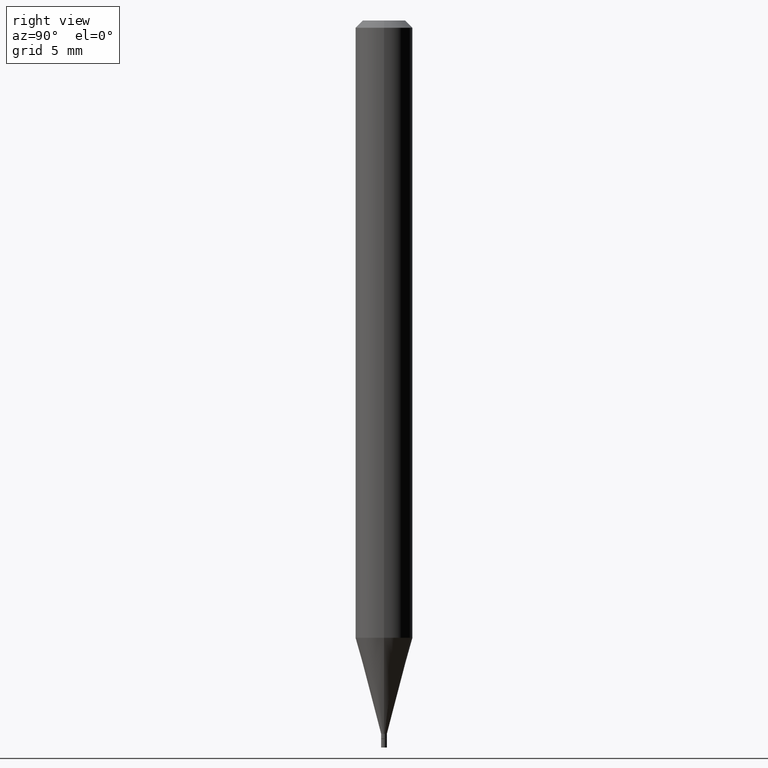
[diagram: clean part render]
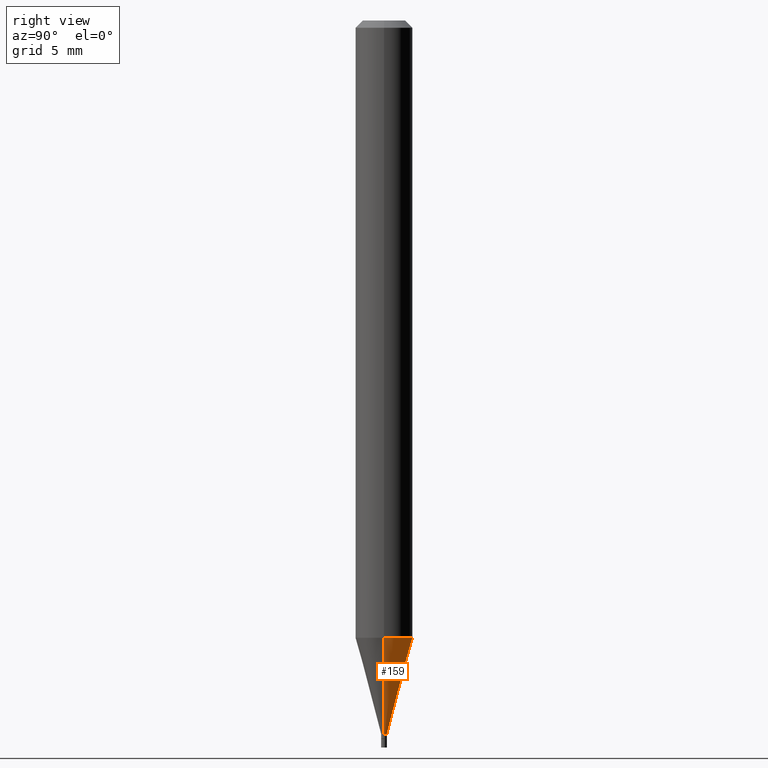
[diagram: same view with one face highlighted and labeled with its STEP entity id]
A machine part, right view. The second image highlights one B-rep face of the part: STEP entity #159.
In plain terms, the highlighted conical surface has half-angle 15 deg.
Its self-contained STEP definition (entity closure, byte-faithful):
#8 = FACE_OUTER_BOUND ( 'NONE', #331, .T. ) ;
#21 = VERTEX_POINT ( 'NONE', #438 ) ;
#23 = ORIENTED_EDGE ( 'NONE', *, *, #305, .T. ) ;
#36 = EDGE_CURVE ( 'NONE', #108, #239, #361, .T. ) ;
#37 = ORIENTED_EDGE ( 'NONE', *, *, #36, .T. ) ;
#44 = DIRECTION ( 'NONE',  ( 1.000000000000000000, -6.982962677686312464E-15, 0.000000000000000000 ) ) ;
#55 = EDGE_CURVE ( 'NONE', #108, #21, #270, .T. ) ;
#67 = CARTESIAN_POINT ( 'NONE',  ( -0.005899999999999920065, -4.562429276026358128E-15, -1.471999999999999975 ) ) ;
#68 = AXIS2_PLACEMENT_3D ( 'NONE', #369, #343, #44 ) ;
#108 = VERTEX_POINT ( 'NONE', #295 ) ;
#111 = DIRECTION ( 'NONE',  ( -2.445468806185136597E-29, 3.491481338843145583E-15, 1.000000000000000000 ) ) ;
#128 = DIRECTION ( 'NONE',  ( 0.2588190451025215721, 1.565188264969619995E-15, 0.9659258262890679791 ) ) ;
#140 = VECTOR ( 'NONE', #128, 39.37007874015748143 ) ;
#150 = DIRECTION ( 'NONE',  ( 1.000000000000000000, -6.982962677686273021E-15, 0.000000000000000000 ) ) ;
#154 = VECTOR ( 'NONE', #357, 39.37007874015748143 ) ;
#157 = CIRCLE ( 'NONE', #297, 0.05904999999999999832 ) ;
#159 = ADVANCED_FACE ( 'NONE', ( #8 ), #283, .T. ) ;
#174 = CARTESIAN_POINT ( 'NONE',  ( -0.05904999999999999138, -4.027320042685452251E-15, -1.273641499577714553 ) ) ;
#175 = VERTEX_POINT ( 'NONE', #174 ) ;
#178 = DIRECTION ( 'NONE',  ( 1.000000000000000000, -6.982962677686312464E-15, 0.000000000000000000 ) ) ;
#220 = EDGE_CURVE ( 'NONE', #21, #175, #157, .T. ) ;
#226 = LINE ( 'NONE', #321, #154 ) ;
#227 = AXIS2_PLACEMENT_3D ( 'NONE', #461, #411, #178 ) ;
#233 = ORIENTED_EDGE ( 'NONE', *, *, #55, .F. ) ;
#239 = VERTEX_POINT ( 'NONE', #67 ) ;
#270 = LINE ( 'NONE', #449, #140 ) ;
#283 = CONICAL_SURFACE ( 'NONE', #227, 0.005899999999999920065, 0.2617993877991502960 ) ;
#295 = CARTESIAN_POINT ( 'NONE',  ( 0.005899999999999920065, -5.180660010575459883E-15, -1.471999999999999975 ) ) ;
#297 = AXIS2_PLACEMENT_3D ( 'NONE', #327, #111, #150 ) ;
#305 = EDGE_CURVE ( 'NONE', #239, #175, #226, .T. ) ;
#321 = CARTESIAN_POINT ( 'NONE',  ( -0.005899999999999920065, -5.097538509367265583E-15, -1.471999999999999975 ) ) ;
#327 = CARTESIAN_POINT ( 'NONE',  ( 3.114650557480160818E-29, -4.446895528151790166E-15, -1.273641499577714553 ) ) ;
#331 = EDGE_LOOP ( 'NONE', ( #37, #23, #419, #233 ) ) ;
#343 = DIRECTION ( 'NONE',  ( -2.445468806185136597E-29, 3.491481338843145583E-15, 1.000000000000000000 ) ) ;
#357 = DIRECTION ( 'NONE',  ( -0.2588190451025215721, 5.211531920934551831E-15, 0.9659258262890679791 ) ) ;
#361 = CIRCLE ( 'NONE', #68, 0.005899999999999920065 ) ;
#369 = CARTESIAN_POINT ( 'NONE',  ( 3.599730082704520905E-29, -5.139460530777110821E-15, -1.471999999999999975 ) ) ;
#411 = DIRECTION ( 'NONE',  ( -2.445468806185136597E-29, 3.491481338843145583E-15, 1.000000000000000000 ) ) ;
#419 = ORIENTED_EDGE ( 'NONE', *, *, #220, .F. ) ;
#438 = CARTESIAN_POINT ( 'NONE',  ( 0.05904999999999999138, -4.859239474269165875E-15, -1.273641499577714553 ) ) ;
#449 = CARTESIAN_POINT ( 'NONE',  ( 0.005899999999999920065, -5.180660010575459883E-15, -1.471999999999999975 ) ) ;
#461 = CARTESIAN_POINT ( 'NONE',  ( 3.599730082704520905E-29, -5.139460530777110821E-15, -1.471999999999999975 ) ) ;